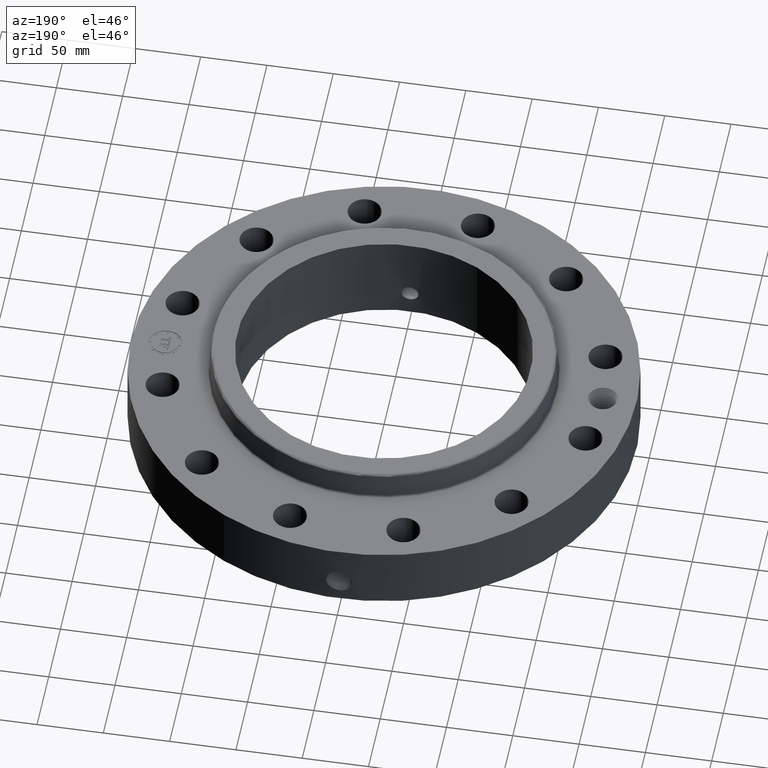
[diagram: clean part render]
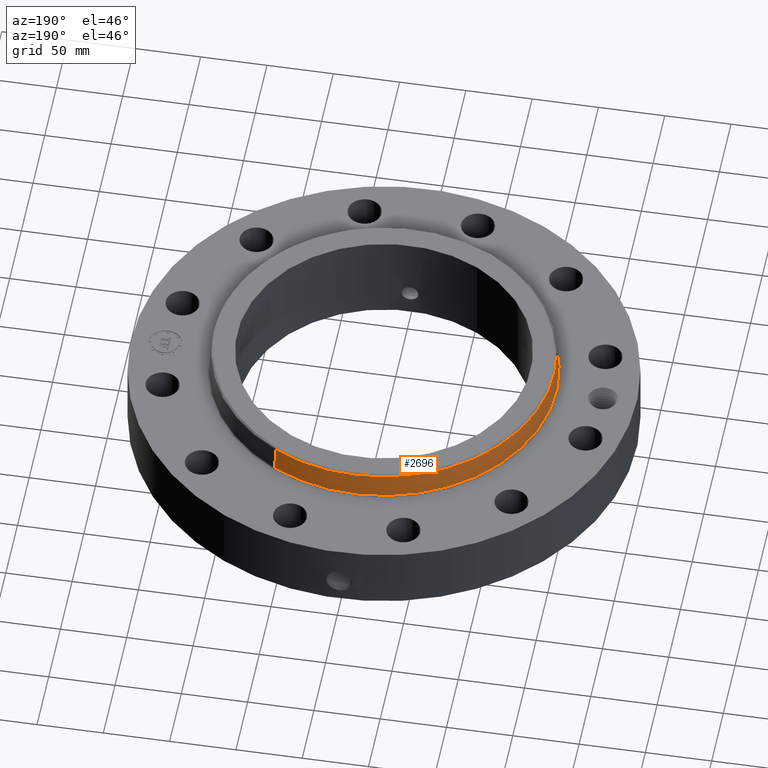
[diagram: same view with one face highlighted and labeled with its STEP entity id]
A machine part, auxiliary view. The second image highlights one B-rep face of the part: STEP entity #2696.
In plain terms, the highlighted conical surface has half-angle 5 deg.
Its self-contained STEP definition (entity closure, byte-faithful):
#2036=AXIS2_PLACEMENT_3D('Circle Axis2P3D',#2034,#2035,$) ;
#2657=AXIS2_PLACEMENT_3D('Cone Axis2P3D',#2654,#2655,#2656) ;
#2687=AXIS2_PLACEMENT_3D('Circle Axis2P3D',#2685,#2686,$) ;
#2012=CARTESIAN_POINT('Vertex',(2.45475856857,4.49340541954,1.98777065544)) ;
#2019=CARTESIAN_POINT('Vertex',(-2.45475856857,-4.49340541954,1.98777065544)) ;
#2034=CARTESIAN_POINT('Axis2P3D Location',(0.,0.,1.98777065544)) ;
#2654=CARTESIAN_POINT('Axis2P3D Location',(0.,7.99652833788E-018,2.69822934458)) ;
#2659=CARTESIAN_POINT('Line Origine',(2.43985872251,4.46613143426,2.34300000001)) ;
#2663=CARTESIAN_POINT('Vertex',(2.42495887644,4.43885744898,2.69822934458)) ;
#2670=CARTESIAN_POINT('Vertex',(-2.42495887644,-4.43885744898,2.69822934458)) ;
#2673=CARTESIAN_POINT('Line Origine',(-2.43985872251,-4.46613143426,2.34300000001)) ;
#2685=CARTESIAN_POINT('Axis2P3D Location',(0.,7.99652833788E-018,2.69822934458)) ;
#2035=DIRECTION('Axis2P3D Direction',(0.,0.,-0.0393700787402)) ;
#2655=DIRECTION('Axis2P3D Direction',(0.,0.,-0.0393700787402)) ;
#2656=DIRECTION('Axis2P3D XDirection',(-0.0188750212049,-0.0345504945626,0.)) ;
#2660=DIRECTION('Vector Direction',(0.00164506649249,0.0030112740159,-0.0392202637044)) ;
#2674=DIRECTION('Vector Direction',(-0.00164506649249,-0.0030112740159,-0.0392202637044)) ;
#2686=DIRECTION('Axis2P3D Direction',(0.,0.,-0.0393700787402)) ;
#2661=VECTOR('Line Direction',#2660,0.0393700787402) ;
#2675=VECTOR('Line Direction',#2674,0.0393700787402) ;
#2691=ORIENTED_EDGE('',*,*,#2038,.F.) ;
#2692=ORIENTED_EDGE('',*,*,#2677,.T.) ;
#2693=ORIENTED_EDGE('',*,*,#2689,.T.) ;
#2694=ORIENTED_EDGE('',*,*,#2665,.F.) ;
#2696=ADVANCED_FACE('PartBody',(#2695),#2658,.T.) ;
#2037=CIRCLE('generated circle',#2036,5.12020818858) ;
#2688=CIRCLE('generated circle',#2687,5.05805110737) ;
#2658=CONICAL_SURFACE('Cone',#2657,5.05805110737,0.0872664625997) ;
#2038=EDGE_CURVE('',#2020,#2013,#2037,.T.) ;
#2665=EDGE_CURVE('',#2013,#2664,#2662,.F.) ;
#2677=EDGE_CURVE('',#2020,#2671,#2676,.F.) ;
#2689=EDGE_CURVE('',#2671,#2664,#2688,.T.) ;
#2690=EDGE_LOOP('',(#2691,#2692,#2693,#2694)) ;
#2695=FACE_OUTER_BOUND('',#2690,.T.) ;
#2662=LINE('Line',#2659,#2661) ;
#2676=LINE('Line',#2673,#2675) ;
#2013=VERTEX_POINT('',#2012) ;
#2020=VERTEX_POINT('',#2019) ;
#2664=VERTEX_POINT('',#2663) ;
#2671=VERTEX_POINT('',#2670) ;